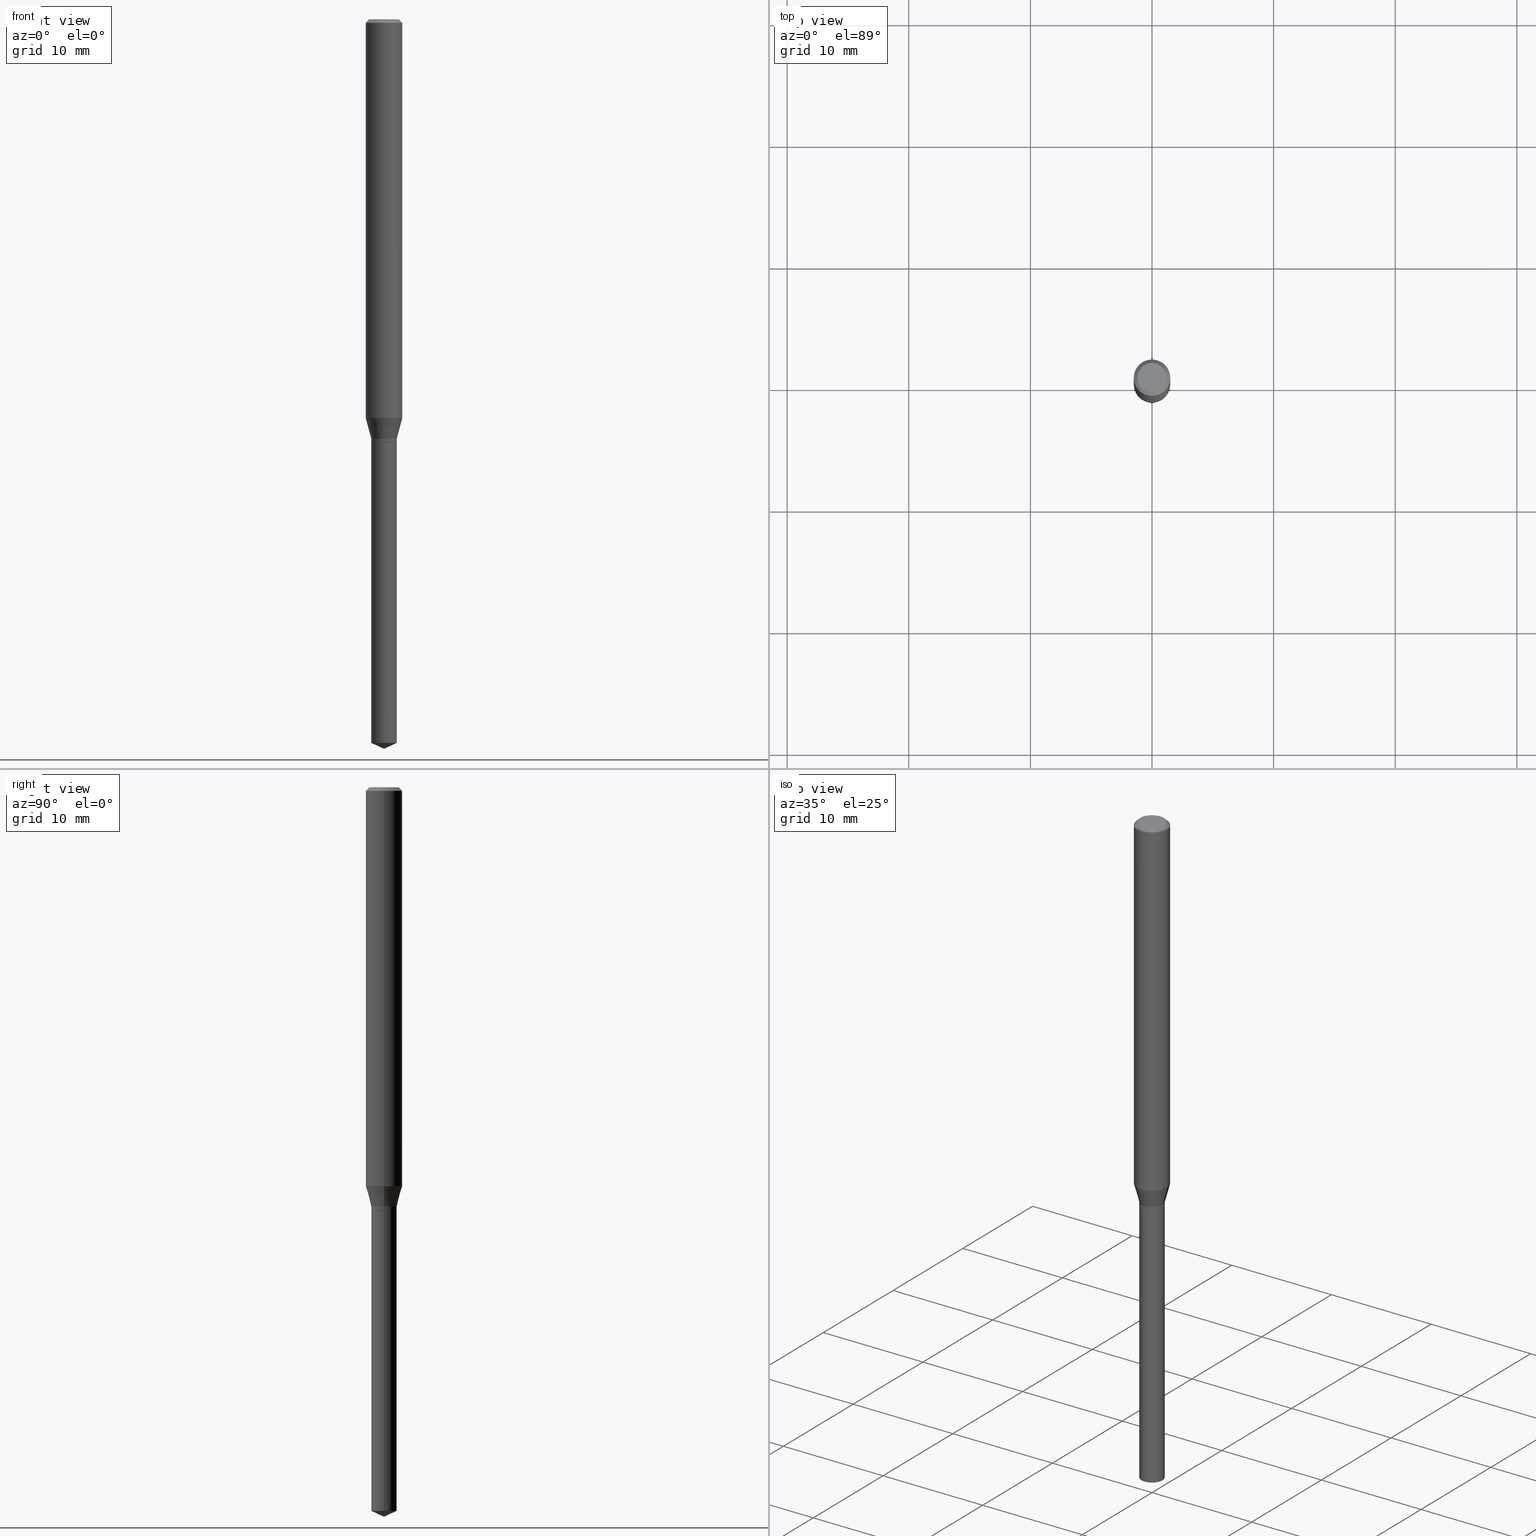
[diagram: canonical four-view strip — front | top / right | iso, engineering-drawing reading convention]
A machine part, canonical four-view strip (front | top / right | iso — engineering-drawing reading convention). The complete STEP part file that produces these views, byte-faithful:
ISO-10303-21;
HEADER;
FILE_DESCRIPTION (( 'STEP AP203' ),
    '1' );
FILE_NAME ('08191.STEP',
    '2024-04-24T13:45:11',
    ( '' ),
    ( '' ),
    'SwSTEP 2.0',
    'SolidWorks 2023',
    '' );
FILE_SCHEMA (( 'CONFIG_CONTROL_DESIGN' ));
ENDSEC;

DATA;
#1 = ORIENTED_EDGE ( 'NONE', *, *, #260, .T. ) ;
#2 = AXIS2_PLACEMENT_3D ( 'NONE', #222, #144, #259 ) ;
#3 = ORIENTED_EDGE ( 'NONE', *, *, #390, .F. ) ;
#4 = LINE ( 'NONE', #301, #393 ) ;
#5 = CLOSED_SHELL ( 'NONE', ( #15, #448, #418, #331, #375, #255, #401, #282, #469, #218, #50, #110 ) ) ;
#6 = VERTEX_POINT ( 'NONE', #345 ) ;
#7 = AXIS2_PLACEMENT_3D ( 'NONE', #36, #490, #155 ) ;
#8 = DIRECTION ( 'NONE',  ( 1.000000000000000000, -6.982962677686266711E-15, 4.876185090822587894E-29 ) ) ;
#9 = PRODUCT_DEFINITION ( 'UNKNOWN', '', #91, #348 ) ;
#10 = EDGE_LOOP ( 'NONE', ( #69, #243, #1, #271 ) ) ;
#11 = CARTESIAN_POINT ( 'NONE',  ( 0.04135000000000003256, -5.028431424201897672E-15, -1.357500000000000151 ) ) ;
#12 = VECTOR ( 'NONE', #134, 39.37007874015748143 ) ;
#13 = ORIENTED_EDGE ( 'NONE', *, *, #169, .T. ) ;
#14 = PLANE ( 'NONE',  #487 ) ;
#15 = ADVANCED_FACE ( 'NONE', ( #162 ), #135, .T. ) ;
#16 = LINE ( 'NONE', #394, #473 ) ;
#17 = CARTESIAN_POINT ( 'NONE',  ( -0.04134999999999999787, -6.187459122716950481E-15, -1.369900000000000118 ) ) ;
#18 = DIRECTION ( 'NONE',  ( -2.445468806185136597E-29, 3.491481338843145583E-15, 1.000000000000000000 ) ) ;
#19 = DIRECTION ( 'NONE',  ( 1.000000000000000000, -6.982962677686273021E-15, 0.000000000000000000 ) ) ;
#20 = CALENDAR_DATE ( 2024, 24, 4 ) ;
#21 = VECTOR ( 'NONE', #262, 39.37007874015748143 ) ;
#22 = EDGE_CURVE ( 'NONE', #267, #39, #196, .T. ) ;
#23 = CARTESIAN_POINT ( 'NONE',  ( -9.050210213589845843E-28, 1.292130163076976058E-13, 37.00807874015747956 ) ) ;
#24 = DATE_TIME_ROLE ( 'creation_date' ) ;
#25 = CONICAL_SURFACE ( 'NONE', #296, 0.05905000000000000526, 0.7853981633974452814 ) ;
#26 = CARTESIAN_POINT ( 'NONE',  ( 3.348824983189927143E-29, -4.781234545411804878E-15, -1.369400000000000395 ) ) ;
#27 = CARTESIAN_POINT ( 'NONE',  ( 0.04724000000000000421, -3.852183633974369838E-16, -3.380025165621689721E-19 ) ) ;
#28 = ORIENTED_EDGE ( 'NONE', *, *, #293, .T. ) ;
#29 = PERSON_AND_ORGANIZATION ( #281, #214 ) ;
#30 = AXIS2_PLACEMENT_3D ( 'NONE', #357, #209, #358 ) ;
#31 = APPROVAL_DATE_TIME ( #328, #323 ) ;
#32 = CIRCLE ( 'NONE', #189, 0.04724000000000000421 ) ;
#33 = ORIENTED_EDGE ( 'NONE', *, *, #396, .T. ) ;
#34 = FACE_OUTER_BOUND ( 'NONE', #10, .T. ) ;
#35 =( NAMED_UNIT ( * ) PLANE_ANGLE_UNIT ( ) SI_UNIT ( $, .RADIAN. ) );
#36 = CARTESIAN_POINT ( 'NONE',  ( 3.350047717593018824E-29, -4.782980286081224804E-15, -1.369900000000000118 ) ) ;
#37 = ORIENTED_EDGE ( 'NONE', *, *, #484, .T. ) ;
#38 = CARTESIAN_POINT ( 'NONE',  ( 3.158182839552085272E-29, -4.509048089700300424E-15, -1.291442700706030733 ) ) ;
#39 = VERTEX_POINT ( 'NONE', #391 ) ;
#40 = CC_DESIGN_APPROVAL ( #117, ( #9 ) ) ;
#41 = ORIENTED_EDGE ( 'NONE', *, *, #434, .T. ) ;
#42 = CARTESIAN_POINT ( 'NONE',  ( 0.000000000000000000, 0.000000000000000000, 0.000000000000000000 ) ) ;
#43 = EDGE_CURVE ( 'NONE', #486, #237, #355, .T. ) ;
#44 = ORIENTED_EDGE ( 'NONE', *, *, #80, .F. ) ;
#45 = AXIS2_PLACEMENT_3D ( 'NONE', #239, #123, #285 ) ;
#46 = LINE ( 'NONE', #66, #172 ) ;
#47 = EDGE_LOOP ( 'NONE', ( #78, #425, #41, #223 ) ) ;
#48 = CIRCLE ( 'NONE', #130, 0.04135000000000003256 ) ;
#49 = DIRECTION ( 'NONE',  ( -2.445468806185136877E-29, 3.491481338843145188E-15, 1.000000000000000000 ) ) ;
#50 = ADVANCED_FACE ( 'NONE', ( #283 ), #318, .F. ) ;
#51 = CARTESIAN_POINT ( 'NONE',  ( 0.04135000000000003256, -2.887455067223273892E-16, 2.016299096791621387E-30 ) ) ;
#52 = CARTESIAN_POINT ( 'NONE',  ( 3.350047717593018824E-29, -4.782980286081224804E-15, -1.369900000000000118 ) ) ;
#53 = CYLINDRICAL_SURFACE ( 'NONE', #165, 0.04135000000000003256 ) ;
#54 = DIRECTION ( 'NONE',  ( -2.445468806185136597E-29, 3.491481338843145583E-15, 1.000000000000000000 ) ) ;
#55 = CALENDAR_DATE ( 2024, 24, 4 ) ;
#56 = ADVANCED_FACE ( 'NONE', ( #174 ), #14, .F. ) ;
#57 = DIRECTION ( 'NONE',  ( 1.000000000000000000, -6.982962677686267499E-15, 0.000000000000000000 ) ) ;
#58 = SECURITY_CLASSIFICATION_LEVEL ( 'unclassified' ) ;
#59 = AXIS2_PLACEMENT_3D ( 'NONE', #265, #306, #343 ) ;
#60 = DIRECTION ( 'NONE',  ( 2.445468806185136597E-29, -3.491481338843145583E-15, -1.000000000000000000 ) ) ;
#61 = APPROVAL_STATUS ( 'not_yet_approved' ) ;
#62 = LOCAL_TIME ( 9, 45, 11.00000000000000000, #292 ) ;
#63 = FACE_OUTER_BOUND ( 'NONE', #354, .T. ) ;
#64 = ORIENTED_EDGE ( 'NONE', *, *, #300, .F. ) ;
#65 = EDGE_CURVE ( 'NONE', #237, #383, #16, .T. ) ;
#66 = CARTESIAN_POINT ( 'NONE',  ( 0.05905000000000000526, -4.463468013801467941E-16, -0.01181000000000007738 ) ) ;
#67 = APPROVAL_ROLE ( '' ) ;
#68 = AXIS2_PLACEMENT_3D ( 'NONE', #336, #376, #229 ) ;
#69 = ORIENTED_EDGE ( 'NONE', *, *, #478, .F. ) ;
#70 = ORIENTED_EDGE ( 'NONE', *, *, #464, .T. ) ;
#71 = DIRECTION ( 'NONE',  ( -0.7071067811865453523, 2.468850131082234184E-15, -0.7071067811865496822 ) ) ;
#72 = LINE ( 'NONE', #232, #21 ) ;
#73 = EDGE_CURVE ( 'NONE', #84, #419, #178, .T. ) ;
#74 = ORIENTED_EDGE ( 'NONE', *, *, #65, .T. ) ;
#75 = CARTESIAN_POINT ( 'NONE',  ( 0.04135000000000003256, -5.069980052134131824E-15, -1.369400000000000395 ) ) ;
#76 = FACE_OUTER_BOUND ( 'NONE', #274, .T. ) ;
#77 = ORIENTED_EDGE ( 'NONE', *, *, #101, .T. ) ;
#78 = ORIENTED_EDGE ( 'NONE', *, *, #173, .F. ) ;
#79 = CIRCLE ( 'NONE', #302, 0.04134999999999999787 ) ;
#80 = EDGE_CURVE ( 'NONE', #106, #6, #170, .T. ) ;
#81 = LINE ( 'NONE', #349, #389 ) ;
#82 = VERTEX_POINT ( 'NONE', #212 ) ;
#83 = CYLINDRICAL_SURFACE ( 'NONE', #90, 0.05905000000000008159 ) ;
#84 = VERTEX_POINT ( 'NONE', #17 ) ;
#85 = AXIS2_PLACEMENT_3D ( 'NONE', #159, #310, #305 ) ;
#86 = PRODUCT_DEFINITION_SHAPE ( 'NONE', 'NONE',  #9 ) ;
#87 = LINE ( 'NONE', #398, #220 ) ;
#88 = EDGE_CURVE ( 'NONE', #419, #84, #450, .T. ) ;
#89 = EDGE_LOOP ( 'NONE', ( #412, #460 ) ) ;
#90 = AXIS2_PLACEMENT_3D ( 'NONE', #426, #438, #99 ) ;
#91 = PRODUCT_DEFINITION_FORMATION_WITH_SPECIFIED_SOURCE ( 'ANY', '', #167, .NOT_KNOWN. ) ;
#92 = DIRECTION ( 'NONE',  ( 1.000000000000000000, -6.982962677686273021E-15, 0.000000000000000000 ) ) ;
#93 = LINE ( 'NONE', #249, #203 ) ;
#94 = AXIS2_PLACEMENT_3D ( 'NONE', #392, #132, #433 ) ;
#95 = CARTESIAN_POINT ( 'NONE',  ( 3.319723904396323737E-29, -4.739685917479570727E-15, -1.357500000000000151 ) ) ;
#96 = EDGE_CURVE ( 'NONE', #415, #383, #387, .T. ) ;
#97 = AXIS2_PLACEMENT_3D ( 'NONE', #26, #369, #183 ) ;
#98 = PERSON_AND_ORGANIZATION_ROLE ( 'design_owner' ) ;
#99 = DIRECTION ( 'NONE',  ( 1.000000000000000000, -6.982962677686267499E-15, 4.876176775795936353E-29 ) ) ;
#100 = LINE ( 'NONE', #402, #453 ) ;
#101 = EDGE_CURVE ( 'NONE', #483, #207, #93, .T. ) ;
#102 = CARTESIAN_POINT ( 'NONE',  ( 0.000000000000000000, 0.000000000000000000, 0.000000000000000000 ) ) ;
#103 = DATE_AND_TIME ( #136, #121 ) ;
#104 = AXIS2_PLACEMENT_3D ( 'NONE', #215, #461, #386 ) ;
#105 = DIRECTION ( 'NONE',  ( 2.445468806185136597E-29, -3.491481338843145583E-15, -1.000000000000000000 ) ) ;
#106 = VERTEX_POINT ( 'NONE', #414 ) ;
#107 =( CONVERSION_BASED_UNIT ( 'INCH', #154 ) LENGTH_UNIT ( ) NAMED_UNIT ( #128 ) );
#108 = AXIS2_PLACEMENT_3D ( 'NONE', #52, #470, #320 ) ;
#109 = ORIENTED_EDGE ( 'NONE', *, *, #173, .T. ) ;
#110 = ADVANCED_FACE ( 'NONE', ( #34 ), #279, .T. ) ;
#111 = DIRECTION ( 'NONE',  ( 1.000000000000000000, -6.982962677686261189E-15, 0.000000000000000000 ) ) ;
#112 = AXIS2_PLACEMENT_3D ( 'NONE', #216, #477, #205 ) ;
#113 = EDGE_LOOP ( 'NONE', ( #421, #423, #244, #197 ) ) ;
#114 = CARTESIAN_POINT ( 'NONE',  ( -0.04135000000000003256, -4.445876496242768526E-15, -1.357500000000000151 ) ) ;
#115 = ORIENTED_EDGE ( 'NONE', *, *, #22, .F. ) ;
#116 = DIRECTION ( 'NONE',  ( 0.000000000000000000, 0.000000000000000000, 1.000000000000000000 ) ) ;
#117 = APPROVAL ( #61, 'UNSPECIFIED' ) ;
#118 = ORIENTED_EDGE ( 'NONE', *, *, #43, .F. ) ;
#119 = CARTESIAN_POINT ( 'NONE',  ( -0.04135000000000000481, -7.885747380589476781E-15, -2.342718178335291057 ) ) ;
#120 = ORIENTED_EDGE ( 'NONE', *, *, #88, .T. ) ;
#121 = LOCAL_TIME ( 9, 45, 11.00000000000000000, #399 ) ;
#122 = DIRECTION ( 'NONE',  ( 1.000000000000000000, -6.982962677686267499E-15, 0.000000000000000000 ) ) ;
#123 = DIRECTION ( 'NONE',  ( -2.445468806185136597E-29, 3.491481338843145583E-15, 1.000000000000000000 ) ) ;
#124 = DIRECTION ( 'NONE',  ( -2.445468806185136597E-29, 3.491481338843145583E-15, 1.000000000000000000 ) ) ;
#125 = CLOSED_SHELL ( 'NONE', ( #456, #361, #211, #198, #56 ) ) ;
#126 = ORIENTED_EDGE ( 'NONE', *, *, #489, .T. ) ;
#127 = EDGE_CURVE ( 'NONE', #194, #82, #248, .T. ) ;
#128 = DIMENSIONAL_EXPONENTS ( 1.000000000000000000, 0.000000000000000000, 0.000000000000000000, 0.000000000000000000, 0.000000000000000000, 0.000000000000000000, 0.000000000000000000 ) ;
#129 = CARTESIAN_POINT ( 'NONE',  ( 5.776197320209293305E-29, -8.246878922347511025E-15, -2.362000000000000099 ) ) ;
#130 = AXIS2_PLACEMENT_3D ( 'NONE', #251, #351, #122 ) ;
#131 = CC_DESIGN_SECURITY_CLASSIFICATION ( #140, ( #91 ) ) ;
#132 = DIRECTION ( 'NONE',  ( -2.445468806185136597E-29, 3.491481338843145583E-15, 1.000000000000000000 ) ) ;
#133 = PRODUCT_RELATED_PRODUCT_CATEGORY ( 'detail', '', ( #167 ) ) ;
#134 = DIRECTION ( 'NONE',  ( -2.445468806185136877E-29, 3.491481338843145188E-15, 1.000000000000000000 ) ) ;
#135 = CONICAL_SURFACE ( 'NONE', #85, 0.04084999999999999742, 0.7853981633978580623 ) ;
#136 = CALENDAR_DATE ( 2024, 24, 4 ) ;
#137 = DIRECTION ( 'NONE',  ( -2.445468806185136597E-29, 3.491481338843145583E-15, 1.000000000000000000 ) ) ;
#138 = CONICAL_SURFACE ( 'NONE', #446, 0.05905000000000000526, 0.7853981633974452814 ) ;
#139 = SHAPE_DEFINITION_REPRESENTATION ( #86, #432 ) ;
#140 = SECURITY_CLASSIFICATION ( '', '', #58 ) ;
#141 = FACE_OUTER_BOUND ( 'NONE', #235, .T. ) ;
#142 = APPROVAL_DATE_TIME ( #479, #380 ) ;
#143 = EDGE_CURVE ( 'NONE', #192, #84, #4, .T. ) ;
#144 = DIRECTION ( 'NONE',  ( -2.445468806185136597E-29, 3.491481338843145583E-15, 1.000000000000000000 ) ) ;
#145 = PERSON_AND_ORGANIZATION_ROLE ( 'classification_officer' ) ;
#146 = DIRECTION ( 'NONE',  ( -1.000000000000000000, 6.982962677686267499E-15, 0.000000000000000000 ) ) ;
#147 = EDGE_LOOP ( 'NONE', ( #13, #109, #115, #200 ) ) ;
#148 = DATE_TIME_ROLE ( 'classification_date' ) ;
#149 = CIRCLE ( 'NONE', #181, 0.04135000000000003256 ) ;
#150 = EDGE_LOOP ( 'NONE', ( #44, #339, #406 ) ) ;
#151 = CARTESIAN_POINT ( 'NONE',  ( -0.04084999999999999742, -4.492723578523223502E-15, -1.369900000000000118 ) ) ;
#152 = CONICAL_SURFACE ( 'NONE', #413, 84.42940631927494621, 1.134464013796318671 ) ;
#153 = ORIENTED_EDGE ( 'NONE', *, *, #88, .F. ) ;
#154 = LENGTH_MEASURE_WITH_UNIT ( LENGTH_MEASURE( 0.02539999999999999897 ), #157 );
#155 = DIRECTION ( 'NONE',  ( 1.000000000000000000, -6.982962677686273021E-15, 0.000000000000000000 ) ) ;
#156 = ORIENTED_EDGE ( 'NONE', *, *, #275, .F. ) ;
#157 =( LENGTH_UNIT ( ) NAMED_UNIT ( * ) SI_UNIT ( $, .METRE. ) );
#158 = CC_DESIGN_PERSON_AND_ORGANIZATION_ASSIGNMENT ( #227, #436, ( #9 ) ) ;
#159 = CARTESIAN_POINT ( 'NONE',  ( 3.350047717593018824E-29, -4.782980286081224804E-15, -1.369900000000000118 ) ) ;
#160 = DIRECTION ( 'NONE',  ( 1.000000000000000000, -6.982962677686270655E-15, 0.000000000000000000 ) ) ;
#161 = CIRCLE ( 'NONE', #68, 0.04135000000000003256 ) ;
#162 = FACE_OUTER_BOUND ( 'NONE', #113, .T. ) ;
#163 = CARTESIAN_POINT ( 'NONE',  ( 5.729044226801822300E-29, -8.179556801826278193E-15, -2.342718178335291057 ) ) ;
#164 = ORIENTED_EDGE ( 'NONE', *, *, #65, .F. ) ;
#165 = AXIS2_PLACEMENT_3D ( 'NONE', #42, #124, #422 ) ;
#166 = DIRECTION ( 'NONE',  ( 1.000000000000000000, -6.982962677686261189E-15, 0.000000000000000000 ) ) ;
#167 = PRODUCT ( '08191', '08191', '', ( #342 ) ) ;
#168 = EDGE_LOOP ( 'NONE', ( #463, #263, #447, #164 ) ) ;
#169 = EDGE_CURVE ( 'NONE', #383, #415, #372, .T. ) ;
#170 = LINE ( 'NONE', #129, #307 ) ;
#171 = DIRECTION ( 'NONE',  ( 0.2588190451025214611, 1.565188264969621573E-15, 0.9659258262890682012 ) ) ;
#172 = VECTOR ( 'NONE', #225, 39.37007874015748143 ) ;
#173 = EDGE_CURVE ( 'NONE', #415, #39, #72, .T. ) ;
#174 = FACE_OUTER_BOUND ( 'NONE', #459, .T. ) ;
#175 = CARTESIAN_POINT ( 'NONE',  ( 0.04134999999999999787, -5.071725792803552539E-15, -1.369900000000000118 ) ) ;
#176 = APPLICATION_CONTEXT ( 'configuration controlled 3d designs of mechanical parts and assemblies' ) ;
#177 = CARTESIAN_POINT ( 'NONE',  ( 3.319723904396323737E-29, -4.739685917479570727E-15, -1.357500000000000151 ) ) ;
#178 = CIRCLE ( 'NONE', #108, 0.04134999999999999787 ) ;
#179 = PERSON_AND_ORGANIZATION ( #281, #214 ) ;
#180 = FACE_OUTER_BOUND ( 'NONE', #374, .T. ) ;
#181 = AXIS2_PLACEMENT_3D ( 'NONE', #95, #213, #360 ) ;
#182 = CC_DESIGN_APPROVAL ( #380, ( #91 ) ) ;
#183 = DIRECTION ( 'NONE',  ( 1.000000000000000000, -6.982962677686267499E-15, 0.000000000000000000 ) ) ;
#184 = CARTESIAN_POINT ( 'NONE',  ( 3.319723904396323737E-29, -4.739685917479570727E-15, -1.357500000000000151 ) ) ;
#185 = AXIS2_PLACEMENT_3D ( 'NONE', #38, #449, #160 ) ;
#186 = APPROVAL_DATE_TIME ( #224, #117 ) ;
#187 = ORIENTED_EDGE ( 'NONE', *, *, #143, .F. ) ;
#188 = CIRCLE ( 'NONE', #104, 0.04724000000000000421 ) ;
#189 = AXIS2_PLACEMENT_3D ( 'NONE', #276, #424, #8 ) ;
#190 = EDGE_CURVE ( 'NONE', #207, #237, #161, .T. ) ;
#191 = MANIFOLD_SOLID_BREP ( 'Body-Move/Copy2[1]', #125 ) ;
#192 = VERTEX_POINT ( 'NONE', #119 ) ;
#193 = CYLINDRICAL_SURFACE ( 'NONE', #7, 0.04134999999999999787 ) ;
#194 = VERTEX_POINT ( 'NONE', #411 ) ;
#195 = APPLICATION_PROTOCOL_DEFINITION ( 'international standard', 'config_control_design', 1994, #308 ) ;
#196 = CIRCLE ( 'NONE', #45, 0.05905000000000000526 ) ;
#197 = ORIENTED_EDGE ( 'NONE', *, *, #260, .F. ) ;
#198 = ADVANCED_FACE ( 'NONE', ( #485 ), #193, .T. ) ;
#199 = APPROVAL_PERSON_ORGANIZATION ( #325, #117, #221 ) ;
#200 = ORIENTED_EDGE ( 'NONE', *, *, #434, .F. ) ;
#201 = ORIENTED_EDGE ( 'NONE', *, *, #190, .T. ) ;
#202 = FACE_OUTER_BOUND ( 'NONE', #428, .T. ) ;
#203 = VECTOR ( 'NONE', #407, 39.37007874015748143 ) ;
#204 = EDGE_LOOP ( 'NONE', ( #341, #3, #126, #37 ) ) ;
#205 = DIRECTION ( 'NONE',  ( -1.000000000000000000, 6.982962677686265922E-15, -4.876176775795935793E-29 ) ) ;
#206 = EDGE_CURVE ( 'NONE', #207, #415, #455, .T. ) ;
#207 = VERTEX_POINT ( 'NONE', #417 ) ;
#208 = CIRCLE ( 'NONE', #334, 0.05905000000000000526 ) ;
#209 = DIRECTION ( 'NONE',  ( -2.438088387897960049E-29, 3.491481338843145188E-15, 1.000000000000000000 ) ) ;
#210 = CARTESIAN_POINT ( 'NONE',  ( 3.350047717593018824E-29, -4.782980286081224804E-15, -1.369900000000000118 ) ) ;
#211 = ADVANCED_FACE ( 'NONE', ( #76 ), #152, .T. ) ;
#212 = CARTESIAN_POINT ( 'NONE',  ( 0.04084999999999999742, -5.068234311464708743E-15, -1.369900000000000118 ) ) ;
#213 = DIRECTION ( 'NONE',  ( -2.445468806185136597E-29, 3.491481338843145583E-15, 1.000000000000000000 ) ) ;
#214 = ORGANIZATION ( 'UNSPECIFIED', 'UNSPECIFIED', '' ) ;
#215 = CARTESIAN_POINT ( 'NONE',  ( 8.265746106709734507E-48, -1.180129479067563789E-33, -3.380025165646692144E-19 ) ) ;
#216 = CARTESIAN_POINT ( 'NONE',  ( 4.132873053354867254E-48, -5.900647395337818946E-34, -1.690012582823346072E-19 ) ) ;
#217 = PERSON_AND_ORGANIZATION ( #281, #214 ) ;
#218 = ADVANCED_FACE ( 'NONE', ( #240 ), #324, .F. ) ;
#219 = FACE_OUTER_BOUND ( 'NONE', #451, .T. ) ;
#220 = VECTOR ( 'NONE', #250, 39.37007874015748143 ) ;
#221 = APPROVAL_ROLE ( '' ) ;
#222 = CARTESIAN_POINT ( 'NONE',  ( 3.350047717593018824E-29, -4.782980286081224804E-15, -1.369900000000000118 ) ) ;
#223 = ORIENTED_EDGE ( 'NONE', *, *, #484, .F. ) ;
#224 = DATE_AND_TIME ( #373, #468 ) ;
#225 = DIRECTION ( 'NONE',  ( 0.7071067811865453523, -7.319954787623248157E-15, -0.7071067811865496822 ) ) ;
#226 = VECTOR ( 'NONE', #268, 39.37007874015747433 ) ;
#227 = PERSON_AND_ORGANIZATION ( #281, #214 ) ;
#228 = CC_DESIGN_DATE_AND_TIME_ASSIGNMENT ( #261, #148, ( #140 ) ) ;
#229 = DIRECTION ( 'NONE',  ( 1.000000000000000000, -6.982962677686267499E-15, 0.000000000000000000 ) ) ;
#230 = ORIENTED_EDGE ( 'NONE', *, *, #367, .F. ) ;
#231 = LOCAL_TIME ( 9, 45, 11.00000000000000000, #371 ) ;
#232 = CARTESIAN_POINT ( 'NONE',  ( -0.05905000000000008159, 4.195754854663397395E-16, -2.904631170795525745E-30 ) ) ;
#233 = EDGE_CURVE ( 'NONE', #486, #483, #48, .T. ) ;
#234 = ORIENTED_EDGE ( 'NONE', *, *, #22, .T. ) ;
#235 = EDGE_LOOP ( 'NONE', ( #295, #201, #74, #298 ) ) ;
#236 = CARTESIAN_POINT ( 'NONE',  ( -0.05905000000000000526, 3.711095515056362547E-16, -0.01181000000000007738 ) ) ;
#237 = VERTEX_POINT ( 'NONE', #11 ) ;
#238 = CARTESIAN_POINT ( 'NONE',  ( -0.04724000000000000421, 3.504923541997677355E-16, -3.380025165670481712E-19 ) ) ;
#239 = CARTESIAN_POINT ( 'NONE',  ( 2.888098660104665518E-31, -4.123439461173782112E-17, -0.01181000000000007738 ) ) ;
#240 = FACE_OUTER_BOUND ( 'NONE', #89, .T. ) ;
#241 = CC_DESIGN_PERSON_AND_ORGANIZATION_ASSIGNMENT ( #333, #145, ( #140 ) ) ;
#242 = AXIS2_PLACEMENT_3D ( 'NONE', #338, #378, #111 ) ;
#243 = ORIENTED_EDGE ( 'NONE', *, *, #127, .T. ) ;
#244 = ORIENTED_EDGE ( 'NONE', *, *, #233, .F. ) ;
#245 = AXIS2_PLACEMENT_3D ( 'NONE', #177, #400, #57 ) ;
#246 = CARTESIAN_POINT ( 'NONE',  ( 3.350047717593018824E-29, -4.782980286081224804E-15, -1.369900000000000118 ) ) ;
#247 = CC_DESIGN_PERSON_AND_ORGANIZATION_ASSIGNMENT ( #368, #98, ( #167 ) ) ;
#248 = CIRCLE ( 'NONE', #59, 0.04084999999999999742 ) ;
#249 = CARTESIAN_POINT ( 'NONE',  ( -0.04135000000000003256, 2.938094212368016582E-16, -2.033979659820405204E-30 ) ) ;
#250 = DIRECTION ( 'NONE',  ( -0.9063077870366517130, 7.915267918739014631E-15, 0.4226182617406953890 ) ) ;
#251 = CARTESIAN_POINT ( 'NONE',  ( 3.348824983189927143E-29, -4.781234545411804878E-15, -1.369400000000000395 ) ) ;
#252 = AXIS2_PLACEMENT_3D ( 'NONE', #184, #480, #403 ) ;
#253 = APPROVAL_STATUS ( 'not_yet_approved' ) ;
#254 = DIRECTION ( 'NONE',  ( -2.445468806185136597E-29, 3.491481338843145583E-15, 1.000000000000000000 ) ) ;
#255 = ADVANCED_FACE ( 'NONE', ( #180 ), #53, .T. ) ;
#256 = CARTESIAN_POINT ( 'NONE',  ( -0.05905000000000015792, -4.089472604233959354E-15, -1.291442700706030733 ) ) ;
#257 = DIRECTION ( 'NONE',  ( -2.445468806185136877E-29, 3.491481338843145188E-15, 1.000000000000000000 ) ) ;
#258 = COORDINATED_UNIVERSAL_TIME_OFFSET ( 5, 0, .BEHIND. ) ;
#259 = DIRECTION ( 'NONE',  ( 1.000000000000000000, -6.982962677686273021E-15, 0.000000000000000000 ) ) ;
#260 = EDGE_CURVE ( 'NONE', #82, #486, #81, .T. ) ;
#261 = DATE_AND_TIME ( #363, #62 ) ;
#262 = DIRECTION ( 'NONE',  ( -2.445468806185136877E-29, 3.491481338843145188E-15, 1.000000000000000000 ) ) ;
#263 = ORIENTED_EDGE ( 'NONE', *, *, #206, .T. ) ;
#264 =( NAMED_UNIT ( * ) SI_UNIT ( $, .STERADIAN. ) SOLID_ANGLE_UNIT ( ) );
#265 = CARTESIAN_POINT ( 'NONE',  ( 3.350047717593018824E-29, -4.782980286081224804E-15, -1.369900000000000118 ) ) ;
#266 = EDGE_CURVE ( 'NONE', #82, #194, #462, .T. ) ;
#267 = VERTEX_POINT ( 'NONE', #362 ) ;
#268 = DIRECTION ( 'NONE',  ( -0.2588190451025214611, 5.211531920934551042E-15, 0.9659258262890682012 ) ) ;
#269 = ORIENTED_EDGE ( 'NONE', *, *, #73, .F. ) ;
#270 = DIRECTION ( 'NONE',  ( -0.7071067811868372299, 7.493145998871401767E-15, 0.7071067811862578045 ) ) ;
#271 = ORIENTED_EDGE ( 'NONE', *, *, #464, .F. ) ;
#272 = CARTESIAN_POINT ( 'NONE',  ( 0.000000000000000000, 0.000000000000000000, 0.000000000000000000 ) ) ;
#273 = CONICAL_SURFACE ( 'NONE', #252, 0.04135000000000003256, 0.2617993877991501295 ) ;
#274 = EDGE_LOOP ( 'NONE', ( #277, #370, #64 ) ) ;
#275 = EDGE_CURVE ( 'NONE', #466, #347, #32, .T. ) ;
#276 = CARTESIAN_POINT ( 'NONE',  ( 8.265746106709734507E-48, -1.180129479067563789E-33, -3.380025165646692144E-19 ) ) ;
#277 = ORIENTED_EDGE ( 'NONE', *, *, #346, .F. ) ;
#278 = CARTESIAN_POINT ( 'NONE',  ( 5.729044226801822300E-29, -8.179556801826278193E-15, -2.342718178335291057 ) ) ;
#279 = CONICAL_SURFACE ( 'NONE', #242, 0.04084999999999999742, 0.7853981633978580623 ) ;
#280 = ORIENTED_EDGE ( 'NONE', *, *, #190, .F. ) ;
#281 = PERSON ( 'UNSPECIFIED', 'UNSPECIFIED', 'UNSPECIFIED', ('UNSPECIFIED'), ('UNSPECIFIED'), ('UNSPECIFIED') ) ;
#282 = ADVANCED_FACE ( 'NONE', ( #287 ), #83, .T. ) ;
#283 = FACE_OUTER_BOUND ( 'NONE', #452, .T. ) ;
#284 = APPROVAL_PERSON_ORGANIZATION ( #179, #380, #481 ) ;
#285 = DIRECTION ( 'NONE',  ( 1.000000000000000000, -6.982962677686267499E-15, 0.000000000000000000 ) ) ;
#286 = CYLINDRICAL_SURFACE ( 'NONE', #404, 0.04135000000000003256 ) ;
#287 = FACE_OUTER_BOUND ( 'NONE', #47, .T. ) ;
#288 = CONICAL_SURFACE ( 'NONE', #245, 0.04135000000000003256, 0.2617993877991501295 ) ;
#289 = CC_DESIGN_APPROVAL ( #323, ( #140 ) ) ;
#290 = CARTESIAN_POINT ( 'NONE',  ( 0.04134999999999999787, -5.071725792803552539E-15, -1.369900000000000118 ) ) ;
#291 = CARTESIAN_POINT ( 'NONE',  ( 2.888098660104665518E-31, -4.123439461173782112E-17, -0.01181000000000007738 ) ) ;
#292 = COORDINATED_UNIVERSAL_TIME_OFFSET ( 5, 0, .BEHIND. ) ;
#293 = EDGE_CURVE ( 'NONE', #6, #192, #79, .T. ) ;
#294 = LINE ( 'NONE', #151, #352 ) ;
#295 = ORIENTED_EDGE ( 'NONE', *, *, #206, .F. ) ;
#296 = AXIS2_PLACEMENT_3D ( 'NONE', #332, #60, #482 ) ;
#297 = APPLICATION_PROTOCOL_DEFINITION ( 'international standard', 'config_control_design', 1994, #176 ) ;
#298 = ORIENTED_EDGE ( 'NONE', *, *, #96, .F. ) ;
#299 = CARTESIAN_POINT ( 'NONE',  ( 0.000000000000000000, 0.000000000000000000, 0.000000000000000000 ) ) ;
#300 = EDGE_CURVE ( 'NONE', #192, #6, #366, .T. ) ;
#301 = CARTESIAN_POINT ( 'NONE',  ( -0.04134999999999999787, -4.489170864844424181E-15, -1.369900000000000118 ) ) ;
#302 = AXIS2_PLACEMENT_3D ( 'NONE', #163, #137, #19 ) ;
#303 = ORIENTED_EDGE ( 'NONE', *, *, #143, .T. ) ;
#304 = CARTESIAN_POINT ( 'NONE',  ( -9.050210213589845843E-28, 1.292130163076976058E-13, 37.00807874015747956 ) ) ;
#305 = DIRECTION ( 'NONE',  ( 1.000000000000000000, -6.982962677686261189E-15, 0.000000000000000000 ) ) ;
#306 = DIRECTION ( 'NONE',  ( -2.445468806185136597E-29, 3.491481338843145583E-15, 1.000000000000000000 ) ) ;
#307 = VECTOR ( 'NONE', #431, 39.37007874015748143 ) ;
#308 = APPLICATION_CONTEXT ( 'configuration controlled 3d designs of mechanical parts and assemblies' ) ;
#309 = CC_DESIGN_PERSON_AND_ORGANIZATION_ASSIGNMENT ( #29, #443, ( #91 ) ) ;
#310 = DIRECTION ( 'NONE',  ( -2.445468806185136597E-29, 3.491481338843145583E-15, 1.000000000000000000 ) ) ;
#311 = DIRECTION ( 'NONE',  ( -2.445468806185136597E-29, 3.491481338843145583E-15, 1.000000000000000000 ) ) ;
#312 = CIRCLE ( 'NONE', #97, 0.04135000000000003256 ) ;
#313 = ORIENTED_EDGE ( 'NONE', *, *, #367, .T. ) ;
#314 = DIRECTION ( 'NONE',  ( 1.000000000000000000, -6.982962677686273021E-15, 0.000000000000000000 ) ) ;
#315 = ORIENTED_EDGE ( 'NONE', *, *, #43, .T. ) ;
#316 = EDGE_CURVE ( 'NONE', #237, #207, #149, .T. ) ;
#317 = DIRECTION ( 'NONE',  ( 2.438088387897960049E-29, -3.491481338843145188E-15, -1.000000000000000000 ) ) ;
#318 = PLANE ( 'NONE',  #30 ) ;
#319 = AXIS2_PLACEMENT_3D ( 'NONE', #321, #18, #166 ) ;
#320 = DIRECTION ( 'NONE',  ( 1.000000000000000000, -6.982962677686273021E-15, 0.000000000000000000 ) ) ;
#321 = CARTESIAN_POINT ( 'NONE',  ( 3.350047717593018824E-29, -4.782980286081224804E-15, -1.369900000000000118 ) ) ;
#322 = VECTOR ( 'NONE', #49, 39.37007874015748143 ) ;
#323 = APPROVAL ( #330, 'UNSPECIFIED' ) ;
#324 = PLANE ( 'NONE',  #112 ) ;
#325 = PERSON_AND_ORGANIZATION ( #281, #214 ) ;
#326 = LINE ( 'NONE', #175, #12 ) ;
#327 = AXIS2_PLACEMENT_3D ( 'NONE', #102, #405, #439 ) ;
#328 = DATE_AND_TIME ( #20, #231 ) ;
#329 = FACE_OUTER_BOUND ( 'NONE', #204, .T. ) ;
#330 = APPROVAL_STATUS ( 'not_yet_approved' ) ;
#331 = ADVANCED_FACE ( 'NONE', ( #465 ), #288, .T. ) ;
#332 = CARTESIAN_POINT ( 'NONE',  ( 2.888098660104665518E-31, -4.123439461173782112E-17, -0.01181000000000007738 ) ) ;
#333 = PERSON_AND_ORGANIZATION ( #281, #214 ) ;
#334 = AXIS2_PLACEMENT_3D ( 'NONE', #416, #409, #420 ) ;
#335 = PERSON_AND_ORGANIZATION_ROLE ( 'design_supplier' ) ;
#336 = CARTESIAN_POINT ( 'NONE',  ( 3.319723904396323737E-29, -4.739685917479570727E-15, -1.357500000000000151 ) ) ;
#337 = CARTESIAN_POINT ( 'NONE',  ( -0.04135000000000003256, -4.466650810208885602E-15, -1.369400000000000395 ) ) ;
#338 = CARTESIAN_POINT ( 'NONE',  ( 3.350047717593018824E-29, -4.782980286081224804E-15, -1.369900000000000118 ) ) ;
#339 = ORIENTED_EDGE ( 'NONE', *, *, #346, .T. ) ;
#340 = DIRECTION ( 'NONE',  ( -2.445468806185136877E-29, 3.491481338843145188E-15, 1.000000000000000000 ) ) ;
#341 = ORIENTED_EDGE ( 'NONE', *, *, #396, .F. ) ;
#342 = MECHANICAL_CONTEXT ( 'NONE', #308, 'mechanical' ) ;
#343 = DIRECTION ( 'NONE',  ( 1.000000000000000000, -6.982962677686261189E-15, 0.000000000000000000 ) ) ;
#344 = AXIS2_PLACEMENT_3D ( 'NONE', #299, #116, #381 ) ;
#345 = CARTESIAN_POINT ( 'NONE',  ( 0.04135000000000000481, -8.468302308548605138E-15, -2.342718178335291057 ) ) ;
#346 = EDGE_CURVE ( 'NONE', #106, #192, #87, .T. ) ;
#347 = VERTEX_POINT ( 'NONE', #238 ) ;
#348 = DESIGN_CONTEXT ( 'detailed design', #176, 'design' ) ;
#349 = CARTESIAN_POINT ( 'NONE',  ( 0.04084999999999999742, -5.068234311464708743E-15, -1.369900000000000118 ) ) ;
#350 = EDGE_LOOP ( 'NONE', ( #187, #442, #313, #269 ) ) ;
#351 = DIRECTION ( 'NONE',  ( -2.445468806185136597E-29, 3.491481338843145583E-15, 1.000000000000000000 ) ) ;
#352 = VECTOR ( 'NONE', #270, 39.37007874015748143 ) ;
#353 = APPROVAL_PERSON_ORGANIZATION ( #217, #323, #67 ) ;
#354 = EDGE_LOOP ( 'NONE', ( #156, #33, #234, #377 ) ) ;
#355 = LINE ( 'NONE', #51, #322 ) ;
#356 = MANIFOLD_SOLID_BREP ( 'Body-Move/Copy2[2]', #5 ) ;
#357 = CARTESIAN_POINT ( 'NONE',  ( 3.350047717593018824E-29, -4.782980286081224804E-15, -1.369900000000000118 ) ) ;
#358 = DIRECTION ( 'NONE',  ( 1.000000000000000000, -6.982962677686265922E-15, 4.876176775795935793E-29 ) ) ;
#359 = VECTOR ( 'NONE', #71, 39.37007874015748143 ) ;
#360 = DIRECTION ( 'NONE',  ( 1.000000000000000000, -6.982962677686267499E-15, 0.000000000000000000 ) ) ;
#361 = ADVANCED_FACE ( 'NONE', ( #474 ), #382, .T. ) ;
#362 = CARTESIAN_POINT ( 'NONE',  ( 0.05905000000000000526, -4.535783407291119586E-16, -0.01181000000000007738 ) ) ;
#363 = CALENDAR_DATE ( 2024, 24, 4 ) ;
#364 = DIRECTION ( 'NONE',  ( 0.7071067811868372299, -2.468850131085291414E-15, 0.7071067811862578045 ) ) ;
#365 = CYLINDRICAL_SURFACE ( 'NONE', #327, 0.05905000000000008159 ) ;
#366 = CIRCLE ( 'NONE', #437, 0.04134999999999999787 ) ;
#367 = EDGE_CURVE ( 'NONE', #6, #419, #326, .T. ) ;
#368 = PERSON_AND_ORGANIZATION ( #281, #214 ) ;
#369 = DIRECTION ( 'NONE',  ( -2.445468806185136597E-29, 3.491481338843145583E-15, 1.000000000000000000 ) ) ;
#370 = ORIENTED_EDGE ( 'NONE', *, *, #80, .T. ) ;
#371 = COORDINATED_UNIVERSAL_TIME_OFFSET ( 5, 0, .BEHIND. ) ;
#372 = CIRCLE ( 'NONE', #185, 0.05905000000000015792 ) ;
#373 = CALENDAR_DATE ( 2024, 24, 4 ) ;
#374 = EDGE_LOOP ( 'NONE', ( #385, #70, #315, #280 ) ) ;
#375 = ADVANCED_FACE ( 'NONE', ( #202 ), #286, .T. ) ;
#376 = DIRECTION ( 'NONE',  ( -2.445468806185136597E-29, 3.491481338843145583E-15, 1.000000000000000000 ) ) ;
#377 = ORIENTED_EDGE ( 'NONE', *, *, #489, .F. ) ;
#378 = DIRECTION ( 'NONE',  ( -2.445468806185136597E-29, 3.491481338843145583E-15, 1.000000000000000000 ) ) ;
#379 = ORIENTED_EDGE ( 'NONE', *, *, #127, .F. ) ;
#380 = APPROVAL ( #253, 'UNSPECIFIED' ) ;
#381 = DIRECTION ( 'NONE',  ( 1.000000000000000000, 0.000000000000000000, 0.000000000000000000 ) ) ;
#382 = CONICAL_SURFACE ( 'NONE', #397, 84.42940631927494621, 1.134464013796318671 ) ;
#383 = VERTEX_POINT ( 'NONE', #384 ) ;
#384 = CARTESIAN_POINT ( 'NONE',  ( 0.05905000000000015792, -4.921392035817674556E-15, -1.291442700706030733 ) ) ;
#385 = ORIENTED_EDGE ( 'NONE', *, *, #101, .F. ) ;
#386 = DIRECTION ( 'NONE',  ( 1.000000000000000000, -6.982962677686266711E-15, 4.876185090822587894E-29 ) ) ;
#387 = CIRCLE ( 'NONE', #94, 0.05905000000000015792 ) ;
#388 = ORIENTED_EDGE ( 'NONE', *, *, #233, .T. ) ;
#389 = VECTOR ( 'NONE', #364, 39.37007874015748143 ) ;
#390 = EDGE_CURVE ( 'NONE', #347, #466, #188, .T. ) ;
#391 = CARTESIAN_POINT ( 'NONE',  ( -0.05905000000000000526, -1.855565756689678006E-15, -0.01181000000000007738 ) ) ;
#392 = CARTESIAN_POINT ( 'NONE',  ( 3.158182839552085272E-29, -4.509048089700300424E-15, -1.291442700706030733 ) ) ;
#393 = VECTOR ( 'NONE', #340, 39.37007874015748143 ) ;
#394 = CARTESIAN_POINT ( 'NONE',  ( 0.04135000000000003256, -5.028431424201897672E-15, -1.357500000000000151 ) ) ;
#395 = DIRECTION ( 'NONE',  ( 1.000000000000000000, -6.982962677686266711E-15, 0.000000000000000000 ) ) ;
#396 = EDGE_CURVE ( 'NONE', #466, #267, #46, .T. ) ;
#397 = AXIS2_PLACEMENT_3D ( 'NONE', #23, #54, #395 ) ;
#398 = CARTESIAN_POINT ( 'NONE',  ( 5.776197320209293305E-29, -8.246878922347511025E-15, -2.362000000000000099 ) ) ;
#399 = COORDINATED_UNIVERSAL_TIME_OFFSET ( 5, 0, .BEHIND. ) ;
#400 = DIRECTION ( 'NONE',  ( -2.445468806185136597E-29, 3.491481338843145583E-15, 1.000000000000000000 ) ) ;
#401 = ADVANCED_FACE ( 'NONE', ( #141 ), #273, .T. ) ;
#402 = CARTESIAN_POINT ( 'NONE',  ( 0.05905000000000008159, -4.123439461173746736E-16, 2.879382386107504424E-30 ) ) ;
#403 = DIRECTION ( 'NONE',  ( 1.000000000000000000, -6.982962677686267499E-15, 0.000000000000000000 ) ) ;
#404 = AXIS2_PLACEMENT_3D ( 'NONE', #272, #311, #435 ) ;
#405 = DIRECTION ( 'NONE',  ( -2.445468806185136597E-29, 3.491481338843145583E-15, 1.000000000000000000 ) ) ;
#406 = ORIENTED_EDGE ( 'NONE', *, *, #293, .F. ) ;
#407 = DIRECTION ( 'NONE',  ( -2.445468806185136877E-29, 3.491481338843145188E-15, 1.000000000000000000 ) ) ;
#408 = AXIS2_PLACEMENT_3D ( 'NONE', #246, #471, #92 ) ;
#409 = DIRECTION ( 'NONE',  ( -2.445468806185136597E-29, 3.491481338843145583E-15, 1.000000000000000000 ) ) ;
#410 = CC_DESIGN_PERSON_AND_ORGANIZATION_ASSIGNMENT ( #440, #335, ( #91 ) ) ;
#411 = CARTESIAN_POINT ( 'NONE',  ( -0.04084999999999999742, -4.490074351349113879E-15, -1.369900000000000118 ) ) ;
#412 = ORIENTED_EDGE ( 'NONE', *, *, #390, .T. ) ;
#413 = AXIS2_PLACEMENT_3D ( 'NONE', #304, #458, #472 ) ;
#414 = CARTESIAN_POINT ( 'NONE',  ( 5.776197320209293305E-29, -8.246878922347511025E-15, -2.362000000000000099 ) ) ;
#415 = VERTEX_POINT ( 'NONE', #256 ) ;
#416 = CARTESIAN_POINT ( 'NONE',  ( 2.888098660104665518E-31, -4.123439461173782112E-17, -0.01181000000000007738 ) ) ;
#417 = CARTESIAN_POINT ( 'NONE',  ( -0.04135000000000003256, -4.466650810208885602E-15, -1.357500000000000151 ) ) ;
#418 = ADVANCED_FACE ( 'NONE', ( #444 ), #365, .T. ) ;
#419 = VERTEX_POINT ( 'NONE', #290 ) ;
#420 = DIRECTION ( 'NONE',  ( 1.000000000000000000, -6.982962677686267499E-15, 0.000000000000000000 ) ) ;
#421 = ORIENTED_EDGE ( 'NONE', *, *, #266, .T. ) ;
#422 = DIRECTION ( 'NONE',  ( 1.000000000000000000, -6.982962677686267499E-15, 4.876176775795936914E-29 ) ) ;
#423 = ORIENTED_EDGE ( 'NONE', *, *, #478, .T. ) ;
#424 = DIRECTION ( 'NONE',  ( -2.445468806185136597E-29, 3.491481338843145583E-15, 1.000000000000000000 ) ) ;
#425 = ORIENTED_EDGE ( 'NONE', *, *, #96, .T. ) ;
#426 = CARTESIAN_POINT ( 'NONE',  ( 0.000000000000000000, 0.000000000000000000, 0.000000000000000000 ) ) ;
#427 = CC_DESIGN_DATE_AND_TIME_ASSIGNMENT ( #103, #24, ( #9 ) ) ;
#428 = EDGE_LOOP ( 'NONE', ( #388, #77, #488, #118 ) ) ;
#429 =( GEOMETRIC_REPRESENTATION_CONTEXT ( 3 ) GLOBAL_UNCERTAINTY_ASSIGNED_CONTEXT ( ( #430 ) ) GLOBAL_UNIT_ASSIGNED_CONTEXT ( ( #107, #35, #264 ) ) REPRESENTATION_CONTEXT ( 'NONE', 'WORKASPACE' ) );
#430 = UNCERTAINTY_MEASURE_WITH_UNIT (LENGTH_MEASURE( 1.000000000000000082E-05 ), #107, 'distance_accuracy_value', 'NONE');
#431 = DIRECTION ( 'NONE',  ( 0.9063077870366517130, -4.853149677051407189E-15, 0.4226182617406953890 ) ) ;
#432 = ADVANCED_BREP_SHAPE_REPRESENTATION ( '08191', ( #191, #356, #344 ), #429 ) ;
#433 = DIRECTION ( 'NONE',  ( 1.000000000000000000, -6.982962677686270655E-15, 0.000000000000000000 ) ) ;
#434 = EDGE_CURVE ( 'NONE', #383, #267, #100, .T. ) ;
#435 = DIRECTION ( 'NONE',  ( 1.000000000000000000, -6.982962677686267499E-15, 4.876176775795936914E-29 ) ) ;
#436 = PERSON_AND_ORGANIZATION_ROLE ( 'creator' ) ;
#437 = AXIS2_PLACEMENT_3D ( 'NONE', #278, #254, #314 ) ;
#438 = DIRECTION ( 'NONE',  ( -2.445468806185136597E-29, 3.491481338843145583E-15, 1.000000000000000000 ) ) ;
#439 = DIRECTION ( 'NONE',  ( 1.000000000000000000, -6.982962677686267499E-15, 4.876176775795936353E-29 ) ) ;
#440 = PERSON_AND_ORGANIZATION ( #281, #214 ) ;
#441 = CYLINDRICAL_SURFACE ( 'NONE', #2, 0.04134999999999999787 ) ;
#442 = ORIENTED_EDGE ( 'NONE', *, *, #300, .T. ) ;
#443 = PERSON_AND_ORGANIZATION_ROLE ( 'creator' ) ;
#444 = FACE_OUTER_BOUND ( 'NONE', #147, .T. ) ;
#445 = ORIENTED_EDGE ( 'NONE', *, *, #73, .T. ) ;
#446 = AXIS2_PLACEMENT_3D ( 'NONE', #291, #105, #146 ) ;
#447 = ORIENTED_EDGE ( 'NONE', *, *, #169, .F. ) ;
#448 = ADVANCED_FACE ( 'NONE', ( #63 ), #25, .T. ) ;
#449 = DIRECTION ( 'NONE',  ( -2.445468806185136597E-29, 3.491481338843145583E-15, 1.000000000000000000 ) ) ;
#450 = CIRCLE ( 'NONE', #408, 0.04134999999999999787 ) ;
#451 = EDGE_LOOP ( 'NONE', ( #28, #303, #153, #230 ) ) ;
#452 = EDGE_LOOP ( 'NONE', ( #457, #379 ) ) ;
#453 = VECTOR ( 'NONE', #257, 39.37007874015748143 ) ;
#454 = LINE ( 'NONE', #236, #359 ) ;
#455 = LINE ( 'NONE', #114, #226 ) ;
#456 = ADVANCED_FACE ( 'NONE', ( #219 ), #441, .T. ) ;
#457 = ORIENTED_EDGE ( 'NONE', *, *, #266, .F. ) ;
#458 = DIRECTION ( 'NONE',  ( -2.445468806185136597E-29, 3.491481338843145583E-15, 1.000000000000000000 ) ) ;
#459 = EDGE_LOOP ( 'NONE', ( #120, #445 ) ) ;
#460 = ORIENTED_EDGE ( 'NONE', *, *, #275, .T. ) ;
#461 = DIRECTION ( 'NONE',  ( -2.445468806185136597E-29, 3.491481338843145583E-15, 1.000000000000000000 ) ) ;
#462 = CIRCLE ( 'NONE', #319, 0.04084999999999999742 ) ;
#463 = ORIENTED_EDGE ( 'NONE', *, *, #316, .T. ) ;
#464 = EDGE_CURVE ( 'NONE', #483, #486, #312, .T. ) ;
#465 = FACE_OUTER_BOUND ( 'NONE', #168, .T. ) ;
#466 = VERTEX_POINT ( 'NONE', #27 ) ;
#467 = DIRECTION ( 'NONE',  ( -1.000000000000000000, 6.982962677686265922E-15, -4.876176775795935793E-29 ) ) ;
#468 = LOCAL_TIME ( 9, 45, 11.00000000000000000, #475 ) ;
#469 = ADVANCED_FACE ( 'NONE', ( #329 ), #138, .T. ) ;
#470 = DIRECTION ( 'NONE',  ( -2.445468806185136597E-29, 3.491481338843145583E-15, 1.000000000000000000 ) ) ;
#471 = DIRECTION ( 'NONE',  ( -2.445468806185136597E-29, 3.491481338843145583E-15, 1.000000000000000000 ) ) ;
#472 = DIRECTION ( 'NONE',  ( 1.000000000000000000, -6.982962677686266711E-15, 0.000000000000000000 ) ) ;
#473 = VECTOR ( 'NONE', #171, 39.37007874015747433 ) ;
#474 = FACE_OUTER_BOUND ( 'NONE', #150, .T. ) ;
#475 = COORDINATED_UNIVERSAL_TIME_OFFSET ( 5, 0, .BEHIND. ) ;
#476 = LOCAL_TIME ( 9, 45, 11.00000000000000000, #258 ) ;
#477 = DIRECTION ( 'NONE',  ( 2.438088387897960049E-29, -3.491481338843145188E-15, -1.000000000000000000 ) ) ;
#478 = EDGE_CURVE ( 'NONE', #194, #483, #294, .T. ) ;
#479 = DATE_AND_TIME ( #55, #476 ) ;
#480 = DIRECTION ( 'NONE',  ( -2.445468806185136597E-29, 3.491481338843145583E-15, 1.000000000000000000 ) ) ;
#481 = APPROVAL_ROLE ( '' ) ;
#482 = DIRECTION ( 'NONE',  ( -1.000000000000000000, 6.982962677686267499E-15, 0.000000000000000000 ) ) ;
#483 = VERTEX_POINT ( 'NONE', #337 ) ;
#484 = EDGE_CURVE ( 'NONE', #39, #267, #208, .T. ) ;
#485 = FACE_OUTER_BOUND ( 'NONE', #350, .T. ) ;
#486 = VERTEX_POINT ( 'NONE', #75 ) ;
#487 = AXIS2_PLACEMENT_3D ( 'NONE', #210, #317, #467 ) ;
#488 = ORIENTED_EDGE ( 'NONE', *, *, #316, .F. ) ;
#489 = EDGE_CURVE ( 'NONE', #347, #39, #454, .T. ) ;
#490 = DIRECTION ( 'NONE',  ( -2.445468806185136597E-29, 3.491481338843145583E-15, 1.000000000000000000 ) ) ;
ENDSEC;
END-ISO-10303-21;
